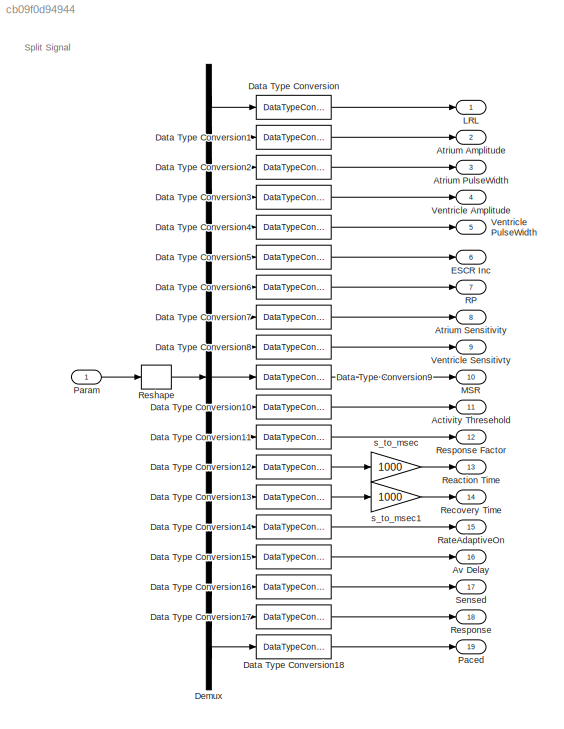
MODEL slx_cb09f0d94944
KIND model
CONFIG AbsTol = auto
CONFIG EnableMultiTasking = on
CONFIG FixedStep = 1e-3
CONFIG MaxStep = auto
CONFIG MinStep = auto
CONFIG RelTol = 1e-3
CONFIG SampleTimeConstraint = Unconstrained
CONFIG Solver = FixedStepAuto
CONFIG SolverName = FixedStepAuto
CONFIG StartTime = 0.0
CONFIG StopTime = 10.0
BLOCK [Outport] Activity Thresehold
  Port = 11
BLOCK [Outport] Atrium Amplitude 
  Port = 2
BLOCK [Outport] Atrium PulseWidth
  Port = 3
BLOCK [Outport] Atrium Sensitivity 
  Port = 8
BLOCK [Outport] Av Delay
  Port = 16
BLOCK [DataTypeConversion] Data Type Conversion
  OutDataTypeStr = uint16
  RndMeth = Floor
  SaturateOnIntegerOverflow = off
BLOCK [DataTypeConversion] Data Type Conversion1
  OutDataTypeStr = single
  RndMeth = Floor
  SaturateOnIntegerOverflow = off
BLOCK [DataTypeConversion] Data Type Conversion10
  OutDataTypeStr = single
  RndMeth = Floor
  SaturateOnIntegerOverflow = off
BLOCK [DataTypeConversion] Data Type Conversion11
  OutDataTypeStr = uint8
  RndMeth = Floor
  SaturateOnIntegerOverflow = off
BLOCK [DataTypeConversion] Data Type Conversion12
  OutDataTypeStr = uint16
  RndMeth = Floor
  SaturateOnIntegerOverflow = off
BLOCK [DataTypeConversion] Data Type Conversion13
  OutDataTypeStr = uint16
  RndMeth = Floor
  SaturateOnIntegerOverflow = off
BLOCK [DataTypeConversion] Data Type Conversion14
  OutDataTypeStr = uint8
  RndMeth = Floor
  SaturateOnIntegerOverflow = off
BLOCK [DataTypeConversion] Data Type Conversion15
  OutDataTypeStr = uint16
  RndMeth = Floor
  SaturateOnIntegerOverflow = off
BLOCK [DataTypeConversion] Data Type Conversion16
  OutDataTypeStr = uint8
  RndMeth = Floor
  SaturateOnIntegerOverflow = off
BLOCK [DataTypeConversion] Data Type Conversion17
  OutDataTypeStr = uint8
  RndMeth = Floor
  SaturateOnIntegerOverflow = off
BLOCK [DataTypeConversion] Data Type Conversion18
  OutDataTypeStr = uint8
  RndMeth = Floor
  SaturateOnIntegerOverflow = off
BLOCK [DataTypeConversion] Data Type Conversion2
  OutDataTypeStr = uint16
  RndMeth = Floor
  SaturateOnIntegerOverflow = off
BLOCK [DataTypeConversion] Data Type Conversion3
  OutDataTypeStr = single
  RndMeth = Floor
  SaturateOnIntegerOverflow = off
BLOCK [DataTypeConversion] Data Type Conversion4
  OutDataTypeStr = uint16
  RndMeth = Floor
  SaturateOnIntegerOverflow = off
BLOCK [DataTypeConversion] Data Type Conversion5
  OutDataTypeStr = uint16
  RndMeth = Floor
  SaturateOnIntegerOverflow = off
BLOCK [DataTypeConversion] Data Type Conversion6
  OutDataTypeStr = uint16
  RndMeth = Floor
  SaturateOnIntegerOverflow = off
BLOCK [DataTypeConversion] Data Type Conversion7
  OutDataTypeStr = single
  RndMeth = Floor
  SaturateOnIntegerOverflow = off
BLOCK [DataTypeConversion] Data Type Conversion8
  OutDataTypeStr = single
  RndMeth = Floor
  SaturateOnIntegerOverflow = off
BLOCK [DataTypeConversion] Data Type Conversion9
  OutDataTypeStr = uint16
  RndMeth = Floor
  SaturateOnIntegerOverflow = off
BLOCK [Demux] Demux
  Outputs = 19
  Ports = [1, 19]
BLOCK [Outport] ESCR Inc
  Port = 6
BLOCK [Outport] LRL
BLOCK [Outport] MSR
  Port = 10
BLOCK [Outport] Paced
  Port = 19
BLOCK [Inport] Param
  OutDataTypeStr = single
BLOCK [Outport] RP
  Port = 7
BLOCK [Outport] RateAdaptiveOn
  Port = 15
BLOCK [Outport] Reaction Time
  OutDataTypeStr = uint16
  Port = 13
BLOCK [Outport] Recovery Time
  OutDataTypeStr = uint16
  Port = 14
BLOCK [Reshape] Reshape
  OutputDimensionality = Column vector (2-D)
  Ports = [1, 1]
BLOCK [Outport] Response
  Port = 18
BLOCK [Outport] Response Factor
  Port = 12
BLOCK [Outport] Sensed
  Port = 17
BLOCK [Outport] Ventricle Amplitude
  Port = 4
BLOCK [Outport] Ventricle PulseWidth 
  Port = 5
BLOCK [Outport] Ventricle Sensitivty
  Port = 9
BLOCK [Gain] s_to_msec
  Gain = 1000
  NameLocation = top
  OutDataTypeStr = uint16
  ParamDataTypeStr = uint16
BLOCK [Gain] s_to_msec1
  Gain = 1000
  OutDataTypeStr = uint16
  ParamDataTypeStr = uint16
ANNOTATION (root): Split Signal
LINE Data Type Conversion10:1 -> Activity Thresehold:1
LINE Data Type Conversion11:1 -> Response Factor:1
LINE Data Type Conversion12:1 -> s_to_msec:1
LINE Data Type Conversion13:1 -> s_to_msec1:1
LINE Data Type Conversion14:1 -> RateAdaptiveOn:1
LINE Data Type Conversion15:1 -> Av Delay:1
LINE Data Type Conversion16:1 -> Sensed:1
LINE Data Type Conversion17:1 -> Response:1
LINE Data Type Conversion18:1 -> Paced:1
LINE Data Type Conversion1:1 -> Atrium Amplitude :1
LINE Data Type Conversion2:1 -> Atrium PulseWidth:1
LINE Data Type Conversion3:1 -> Ventricle Amplitude:1
LINE Data Type Conversion4:1 -> Ventricle PulseWidth :1
LINE Data Type Conversion5:1 -> ESCR Inc:1
LINE Data Type Conversion6:1 -> RP:1
LINE Data Type Conversion7:1 -> Atrium Sensitivity :1
LINE Data Type Conversion8:1 -> Ventricle Sensitivty:1
LINE Data Type Conversion9:1 -> MSR:1
LINE Data Type Conversion:1 -> LRL:1
LINE Demux:1 -> Data Type Conversion:1
LINE Demux:10 -> Data Type Conversion9:1
LINE Demux:11 -> Data Type Conversion10:1
LINE Demux:12 -> Data Type Conversion11:1
LINE Demux:13 -> Data Type Conversion12:1
LINE Demux:14 -> Data Type Conversion13:1
LINE Demux:15 -> Data Type Conversion14:1
LINE Demux:16 -> Data Type Conversion15:1
LINE Demux:17 -> Data Type Conversion16:1
LINE Demux:18 -> Data Type Conversion17:1
LINE Demux:19 -> Data Type Conversion18:1
LINE Demux:2 -> Data Type Conversion1:1
LINE Demux:3 -> Data Type Conversion2:1
LINE Demux:4 -> Data Type Conversion3:1
LINE Demux:5 -> Data Type Conversion4:1
LINE Demux:6 -> Data Type Conversion5:1
LINE Demux:7 -> Data Type Conversion6:1
LINE Demux:8 -> Data Type Conversion7:1
LINE Demux:9 -> Data Type Conversion8:1
LINE Param:1 -> Reshape:1
LINE Reshape:1 -> Demux:1
LINE s_to_msec1:1 -> Recovery Time:1
LINE s_to_msec:1 -> Reaction Time:1
